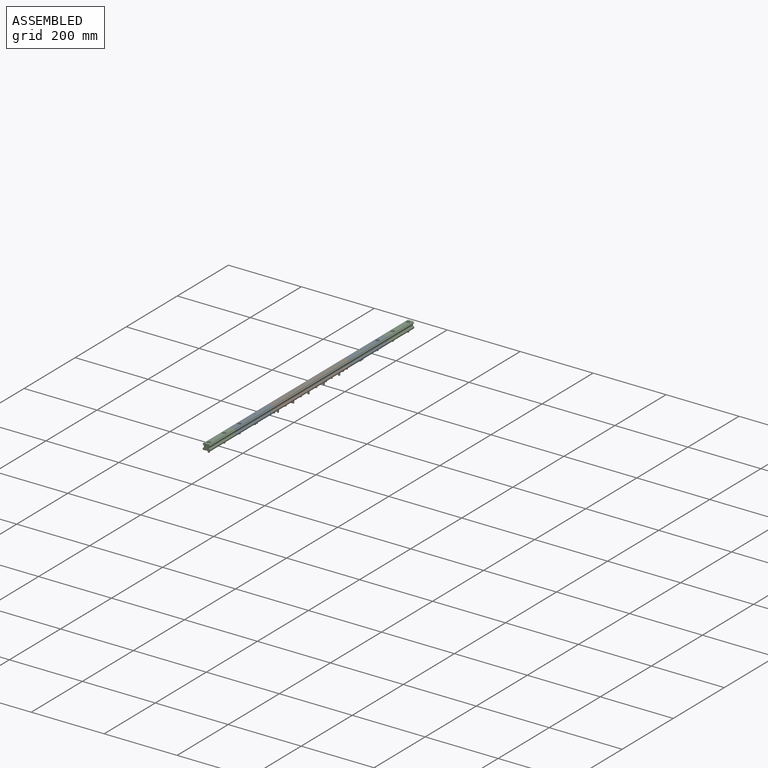
[diagram: assembled view]
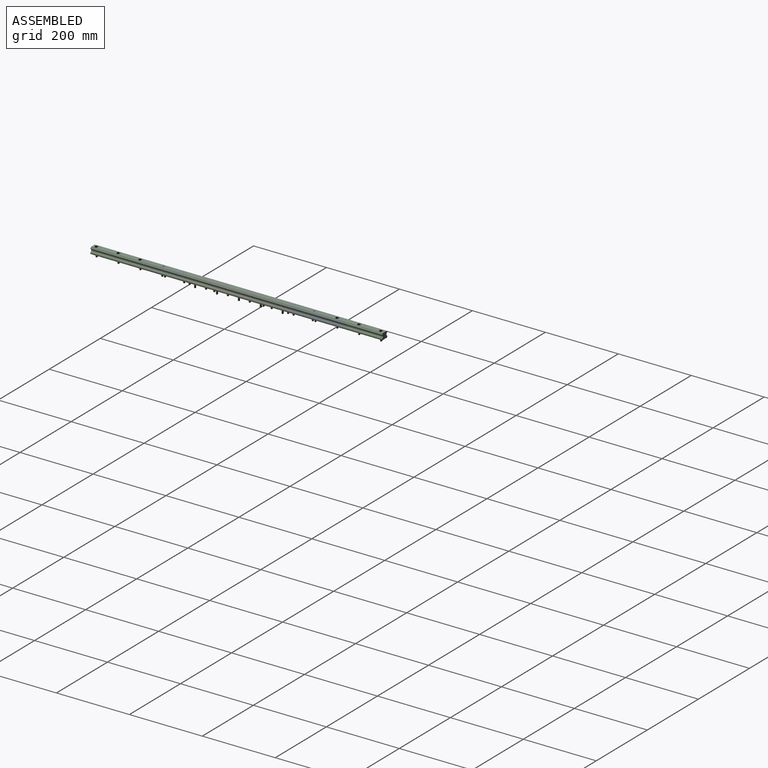
[diagram: assembled view, second angle]
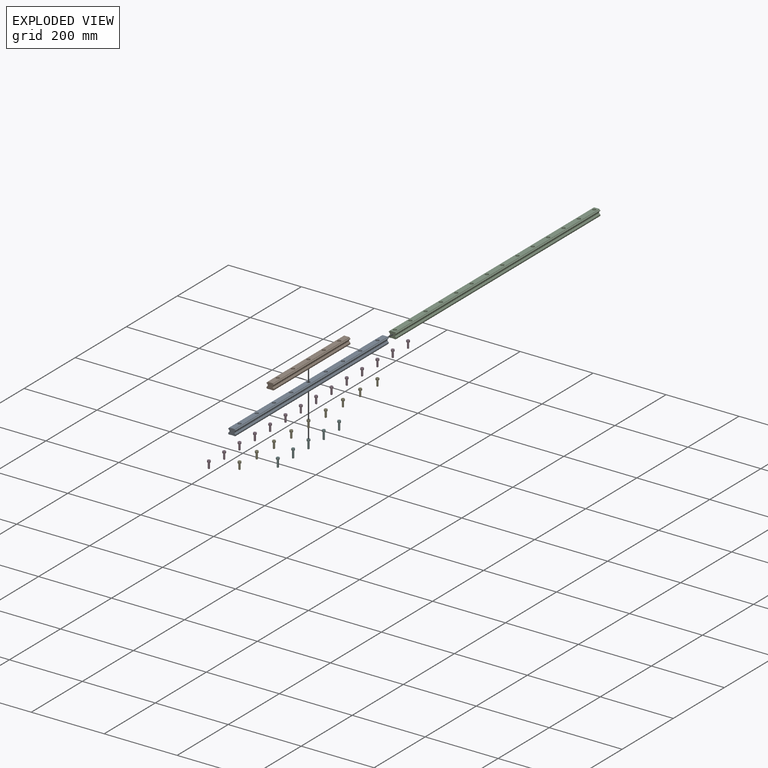
[diagram: exploded view]
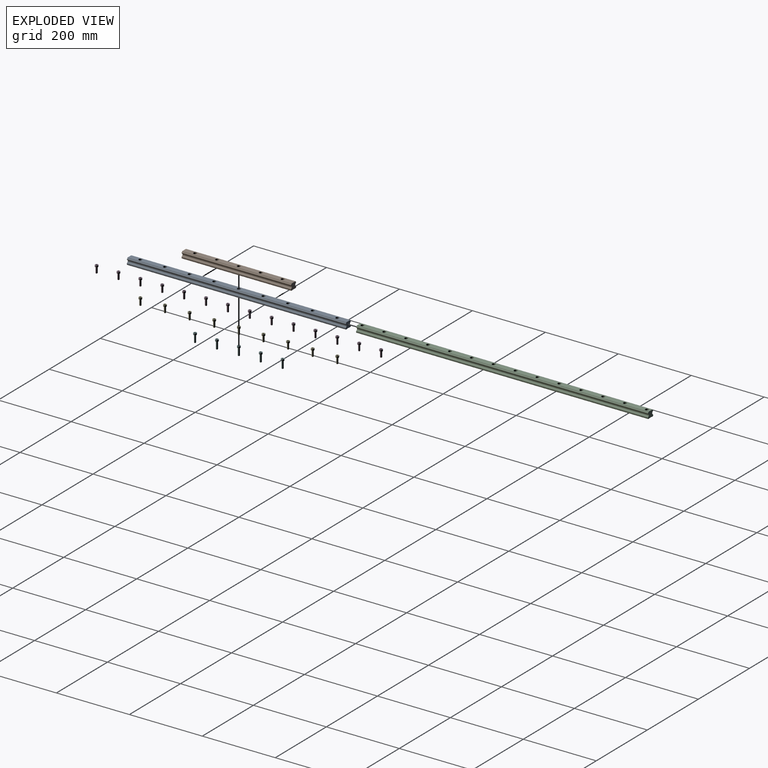
[diagram: exploded view, second angle]
FCSTD DOCUMENT  (FreeCAD 2021.614R24301 +3747 (Git))
Label: HGR20
License: Creative Commons Attribution
LicenseURL: http://creativecommons.org/licenses/by/4.0/
objects: App::FeaturePython×96, Part::FeaturePython×80, App::LinkElement×28, Sketcher::SketchObject×6, App::Link×6, PartDesign::SubShapeBinder×3, PartDesign::Pad×3, PartDesign::Body×3, PartDesign::Pocket×2, PartDesign::Hole×2, PartDesign::LinearPattern×2, App::DocumentObjectGroup×1
note: 116 computed .brp shape members not serialized (recipe doc carries the construction recipe); baked Part::Feature solids carry a one-line shape summary decoded from their .brp

FEATURE [PartDesign::SubShapeBinder] Import  label="Import(Sketch002)"
  BindCopyOnChange = 0
  BindMode = 0
  ClaimChildren = false
  Context = -> Body [Pad.Import.]
  FillStyle = 0
  Fuse = false
  MakeFace = false
  PartialLoad = false
  Relative = true
  Support = -> [Sketch002]
  _Version = 8
FEATURE [PartDesign::Pad] Pad
  ClaimChildren = false
  Direction = (1,1,1)
  Fit = 0
  FitJoin = 0
  InnerFit = 0
  InnerFitJoin = 0
  InnerTaperAngle = 0
  InnerTaperAngleRev = 0
  Length = 300
  Length2 = 100
  Linearize = true
  Midplane = true
  NewSolid = false
  Profile = -> Import
  Refine = true
  Suppress = false
  Type = 0
FEATURE [Sketcher::SketchObject] Sketch
  ExternalGeometry = -> [Pad]
  FullyConstrained = true
  MapMode = 5
  Placement = pos=(0,-3.8e-15,17.5) rot=(0,0,1;0rad)
  Support = -> [Pad]
  sketch-geometry (11):
    g0: Circle CenterX=0 CenterY=-120 CenterZ=0 NormalX=0 NormalY=0 NormalZ=1 AngleXU=0 Radius=2.95
    g1: Circle CenterX=0 CenterY=-60 CenterZ=0 NormalX=0 NormalY=0 NormalZ=1 AngleXU=0 Radius=2.95
    g2: Circle CenterX=0 CenterY=7.1e-15 CenterZ=0 NormalX=0 NormalY=0 NormalZ=1 AngleXU=0 Radius=2.95
    g3: Circle CenterX=0 CenterY=60 CenterZ=0 NormalX=0 NormalY=0 NormalZ=1 AngleXU=0 Radius=2.95
    g4: LineSegment [constr] StartX=0 StartY=-120 StartZ=0 EndX=0 EndY=-60 EndZ=0
    g5: LineSegment [constr] StartX=0 StartY=-60 StartZ=0 EndX=0 EndY=7.1e-15 EndZ=0
    g6: LineSegment [constr] StartX=0 StartY=7.1e-15 StartZ=0 EndX=0 EndY=60 EndZ=0
    g7: LineSegment [constr] StartX=0 StartY=60 StartZ=0 EndX=0 EndY=120 EndZ=0
    g8: Circle CenterX=0 CenterY=120 CenterZ=0 NormalX=0 NormalY=0 NormalZ=1 AngleXU=0 Radius=2.95
    g9: LineSegment [constr] StartX=0 StartY=120 StartZ=0 EndX=0 EndY=150 EndZ=0
    g10: LineSegment [constr] StartX=0 StartY=-120 StartZ=0 EndX=0 EndY=-150 EndZ=0
  constraints (29):
    c: PointOnObject(g0,g-2)
    c: PointOnObject(g1,g-2)
    c: PointOnObject(g2,g-2)
    c: PointOnObject(g3,g-2)
    c: Coincident(g4,g0)
    c: Coincident(g4,g1)
    c: Coincident(g5,g1)
    c: Coincident(g5,g2)
    c: Coincident(g6,g2)
    c: Coincident(g6,g3)
    c: Equal(g6,g5)
    c: Equal(g5,g4)
    c: DistanceY(g4,g4) = 60
    c: Coincident(g7,g3)
    c: Vertical(g7)
    c: Equal(g7,g6)
    c: Coincident(g8,g7)
    c: Equal(g8,g3)
    c: Equal(g3,g2)
    c: Equal(g2,g1)
    c: Equal(g1,g0)
    c: Coincident(g9,g8)
    c: PointOnObject(g9,g-3)
    c: Vertical(g9)
    c: Coincident(g10,g0)
    c: PointOnObject(g10,g-4)
    c: Vertical(g10)
    c: Equal(g10,g9)
    c: Diameter(g8) = 5.9
FEATURE [PartDesign::Pocket] Pocket
  BaseFeature = -> Pad
  ClaimChildren = false
  Fit = 0
  FitJoin = 0
  InnerFit = 0
  InnerFitJoin = 0
  InnerTaperAngle = 0
  InnerTaperAngleRev = 0
  Length = 5
  Length2 = 100
  Linearize = true
  NewSolid = false
  Profile = -> Sketch
  Refine = true
  Suppress = false
  Type = 1
FEATURE [Sketcher::SketchObject] Sketch001
  ExternalGeometry = -> [Pocket]
  FullyConstrained = true
  MapMode = 5
  Placement = pos=(0,-3.8e-15,17.5) rot=(0,0,1;0rad)
  Support = -> [Pocket]
  sketch-geometry (5):
    g0: Circle CenterX=0 CenterY=120 CenterZ=0 NormalX=0 NormalY=0 NormalZ=1 AngleXU=0 Radius=4.7
    g1: Circle CenterX=0 CenterY=60 CenterZ=0 NormalX=0 NormalY=0 NormalZ=1 AngleXU=0 Radius=4.7
    g2: Circle CenterX=0 CenterY=0 CenterZ=0 NormalX=0 NormalY=0 NormalZ=1 AngleXU=0 Radius=4.7
    g3: Circle CenterX=0 CenterY=-60 CenterZ=0 NormalX=0 NormalY=0 NormalZ=1 AngleXU=0 Radius=4.7
    g4: Circle CenterX=0 CenterY=-120 CenterZ=0 NormalX=0 NormalY=0 NormalZ=1 AngleXU=0 Radius=4.7
  constraints (10):
    c: Coincident(g0,g-3)
    c: Coincident(g1,g-4)
    c: Coincident(g2,g-5)
    c: Coincident(g3,g-6)
    c: Coincident(g4,g-7)
    c: Equal(g4,g3)
    c: Equal(g3,g2)
    c: Equal(g2,g1)
    c: Equal(g1,g0)
    c: Diameter(g0) = 9.4
FEATURE [PartDesign::Pocket] Pocket001
  BaseFeature = -> Pocket
  ClaimChildren = false
  Fit = 0
  FitJoin = 0
  InnerFit = 0
  InnerFitJoin = 0
  InnerTaperAngle = 0
  InnerTaperAngleRev = 0
  Length = 9.5
  Length2 = 100
  Linearize = true
  NewSolid = false
  Profile = -> Sketch001
  Refine = true
  Suppress = false
  Type = 0
FEATURE [PartDesign::Body] Body  label="HGR20-300"
  AutoGroupSolids = false
  ExportMode = 0
  Group = -> [Import,Pad,Sketch,Pocket,Sketch001,Pocket001]
  Origin = -> Origin
  Tip = -> Pocket001
  _ExportChildren = -> [Pad,Pocket,Pocket001]
  _GroupVersion = 1
FEATURE [App::Link] Link001  label="Link001(HGR20-300)"
  AutoLinkLabel = true
  LinkedObject = -> Body
  SyncGroupVisibility = false
  _LinkVersion = 1
FEATURE [Sketcher::SketchObject] Sketch002
  FullyConstrained = true
  MapMode = 5
  Placement = pos=(0,0,0) rot=(1,0,0;1.5708rad)
  sketch-geometry (29):
    g0: LineSegment StartX=-9 StartY=0 StartZ=0 EndX=-10 EndY=1 EndZ=0
    g1: LineSegment StartX=-10 StartY=1 StartZ=0 EndX=-10 EndY=4 EndZ=0
    g2: LineSegment StartX=-10 StartY=4 StartZ=0 EndX=-6.6 EndY=7.45 EndZ=0
    g3: LineSegment StartX=-6.6 StartY=7.45 StartZ=0 EndX=-6.6 EndY=9.95 EndZ=0
    g4: LineSegment StartX=-6.6 StartY=9.95 StartZ=0 EndX=-7.65996 EndY=11.05 EndZ=0
    g5: ArcOfCircle CenterX=-9.8 CenterY=10.8 CenterZ=0 NormalX=0 NormalY=0 NormalZ=1 AngleXU=0 Radius=2.15459 StartAngle=0.116293 EndAngle=1.47784
    g6: LineSegment StartX=-9.6 StartY=12.9453 StartZ=0 EndX=-10 EndY=13.3453 EndZ=0
    g7: LineSegment StartX=-10 StartY=13.3453 StartZ=0 EndX=-10 EndY=14.6953 EndZ=0
    g8: LineSegment StartX=-10 StartY=14.6953 StartZ=0 EndX=-9.6 EndY=15.0953 EndZ=0
    g9: ArcOfCircle CenterX=-9.8 CenterY=17.2406 CenterZ=0 NormalX=0 NormalY=0 NormalZ=1 AngleXU=0 Radius=2.15459 StartAngle=4.80535 EndAngle=6.21789
    g10: LineSegment StartX=-7.65 StartY=17.1 StartZ=0 EndX=-7.25 EndY=17.5 EndZ=0
    g11: LineSegment StartX=-7.25 StartY=17.5 StartZ=0 EndX=0 EndY=17.5 EndZ=0
    g12: LineSegment StartX=0 StartY=17.5 StartZ=0 EndX=7.25 EndY=17.5 EndZ=0
    g13: LineSegment StartX=7.25 StartY=17.5 StartZ=0 EndX=7.65 EndY=17.1 EndZ=0
    g14: ArcOfCircle CenterX=9.8 CenterY=17.2406 CenterZ=0 NormalX=0 NormalY=0 NormalZ=1 AngleXU=0 Radius=2.15459 StartAngle=3.20688 EndAngle=4.61943
    g15: LineSegment StartX=9.6 StartY=15.0953 StartZ=0 EndX=10 EndY=14.6953 EndZ=0
    g16: LineSegment StartX=10 StartY=14.6953 StartZ=0 EndX=10 EndY=13.3453 EndZ=0
    g17: LineSegment StartX=10 StartY=13.3453 StartZ=0 EndX=9.6 EndY=12.9453 EndZ=0
    g18: ArcOfCircle CenterX=9.8 CenterY=10.8 CenterZ=0 NormalX=0 NormalY=0 NormalZ=1 AngleXU=0 Radius=2.15459 StartAngle=1.66376 EndAngle=3.0253
    g19: LineSegment StartX=7.65996 StartY=11.05 StartZ=0 EndX=6.6 EndY=9.95 EndZ=0
    g20: LineSegment StartX=6.6 StartY=9.95 StartZ=0 EndX=6.6 EndY=7.45 EndZ=0
    g21: LineSegment StartX=6.6 StartY=7.45 StartZ=0 EndX=10 EndY=4 EndZ=0
    g22: LineSegment StartX=10 StartY=4 StartZ=0 EndX=10 EndY=1 EndZ=0
    g23: LineSegment StartX=10 StartY=1 StartZ=0 EndX=9 EndY=0 EndZ=0
    g24: LineSegment StartX=-4 StartY=0 StartZ=0 EndX=-4 EndY=0.4 EndZ=0
    g25: LineSegment StartX=-4 StartY=0.4 StartZ=0 EndX=4 EndY=0.4 EndZ=0
    g26: LineSegment StartX=4 StartY=0.4 StartZ=0 EndX=4 EndY=0 EndZ=0
    g27: LineSegment StartX=-9 StartY=0 StartZ=0 EndX=-4 EndY=0 EndZ=0
    g28: LineSegment StartX=4 StartY=0 StartZ=0 EndX=9 EndY=0 EndZ=0
  constraints (89):
    c: Coincident(g0,g1)
    c: Vertical(g1)
    c: Coincident(g1,g2)
    c: Coincident(g2,g3)
    c: Vertical(g3)
    c: Coincident(g3,g4)
    c: Coincident(g5,g4)
    c: Coincident(g6,g5)
    c: Coincident(g6,g7)
    c: Vertical(g7)
    c: Coincident(g7,g8)
    c: Coincident(g9,g8)
    c: Coincident(g9,g10)
    c: Coincident(g10,g11)
    c: PointOnObject(g11,g-2)
    c: Horizontal(g11)
    c: Coincident(g11,g12)
    c: Horizontal(g12)
    c: Coincident(g12,g13)
    c: Coincident(g14,g13)
    c: Coincident(g14,g15)
    c: Coincident(g15,g16)
    c: Coincident(g16,g17)
    c: Coincident(g18,g17)
    c: Coincident(g18,g19)
    c: Coincident(g19,g20)
    c: Vertical(g20)
    c: Coincident(g20,g21)
    c: Coincident(g21,g22)
    c: Vertical(g22)
    c: Coincident(g22,g23)
    c: PointOnObject(g23,g-1)
    c: Equal(g0,g23)
    c: Equal(g22,g1)
    c: Equal(g2,g21)
    c: Equal(g20,g3)
    c: Equal(g4,g19)
    c: Equal(g5,g18)
    c: Equal(g18,g14)
    c: Equal(g14,g9)
    c: Equal(g15,g17)
    c: Vertical(g16)
    c: Equal(g16,g7)
    c: Equal(g10,g13)
    c: Equal(g12,g11)
    c: DistanceX(g10,g12) = 14.5
    c: Horizontal(g22,g0)
    c: DistanceX(g0,g22) = 20
    c: Horizontal(g2,g20)
    c: DistanceX(g0,g23) = 18
    c: DistanceY(g23,g22) = 1
    c: DistanceY(g22,g22) = 3
    c: DistanceX(g2,g20) = 13.2
    c: DistanceY(g21,g20) = 3.45
    c: DistanceY(g20,g20) = 2.5
    c: Horizontal(g18,g5)
    c: Horizontal(g18,g4)
    c: Horizontal(g9,g13)
    c: Horizontal(g9,g14)
    c: Vertical(g9,g5)
    c: DistanceX(g9,g13) = 15.3
    c: DistanceY(g13,g12) = 0.4
    c: Vertical(g15,g21)
    c: Vertical(g7,g1)
    c: Equal(g13,g15)
    c: Equal(g17,g6)
    c: Equal(g6,g8)
    c: DistanceY(g19,g18) = 1.1
    c: DistanceY(g23,g18) = 10.8
    c: DistanceX(g5,g17) = 19.2
    c: DistanceY(g23,g12) = 17.5
    c: DistanceY(g17,g16) = 0.4
    c: DistanceY(g15,g14) = 0.4
    c: DistanceY(g7,g7) = 1.35
    c: DistanceX(g-1,g18) = 9.8
    c: Coincident(g24,g25)
    c: Horizontal(g25)
    c: Coincident(g25,g26)
    c: Vertical(g26)
    c: Vertical(g24)
    c: Symmetric(g26,g24,g-1)
    c: Coincident(g27,g0)
    c: Coincident(g27,g24)
    c: Horizontal(g27)
    c: Coincident(g28,g26)
    c: Coincident(g28,g23)
    c: DistanceX(g25,g25) = 8
    c: DistanceY(g26,g26) = 0.4
    c: Symmetric(g23,g0,g-1)
FEATURE [PartDesign::SubShapeBinder] Import001  label="Import001(Sketch002)"
  BindCopyOnChange = 0
  BindMode = 0
  ClaimChildren = false
  Context = -> Body001 [Import001.]
  FillStyle = 0
  Fuse = false
  MakeFace = false
  PartialLoad = false
  Relative = true
  Support = -> [Sketch002]
  _Version = 8
FEATURE [PartDesign::Pad] Pad001
  ClaimChildren = false
  Direction = (1,1,1)
  Fit = 0
  FitJoin = 0
  InnerFit = 0
  InnerFitJoin = 0
  InnerTaperAngle = 0
  InnerTaperAngleRev = 0
  Length = 600
  Length2 = 100
  Linearize = true
  Midplane = true
  NewSolid = false
  Profile = -> Import001
  Refine = true
  Suppress = false
  Type = 0
FEATURE [Sketcher::SketchObject] Sketch003
  ExternalGeometry = -> [Pad001]
  FullyConstrained = true
  MapMode = 5
  Placement = pos=(0,0,17.5) rot=(0,0,1;0rad)
  Support = -> [Pad001]
  sketch-geometry (1):
    g0: Circle CenterX=0 CenterY=-270 CenterZ=0 NormalX=0 NormalY=0 NormalZ=1 AngleXU=0 Radius=2.95
  constraints (3):
    c: PointOnObject(g0,g-2)
    c: Diameter(g0) = 5.9
    c: DistanceY(g-3,g0) = 30
FEATURE [PartDesign::Hole] Hole
  BaseFeature = -> Pad001
  ClaimChildren = false
  CustomThreadClearance = 0
  Depth = 25
  DepthType = 1
  Diameter = 5.9
  DrillForDepth = false
  DrillPoint = 1
  DrillPointAngle = 118
  Fit = 0
  FitJoin = 0
  HoleCutCountersinkAngle = 90
  HoleCutCustomValues = false
  HoleCutDepth = 9.5
  HoleCutDiameter = 9.5
  HoleCutType = 1
  InnerFit = 0
  InnerFitJoin = 0
  ModelThread = false
  NewSolid = false
  Profile = -> Sketch003
  Refine = true
  Suppress = false
  Tapered = false
  TaperedAngle = 90
  ThreadClass = 0
  ThreadDepth = 1213.19
  ThreadDepthType = 0
  ThreadDirection = 0
  ThreadFit = 0
  ThreadSize = 0
  ThreadType = 0
  Threaded = false
  UseCustomThreadClearance = false
FEATURE [PartDesign::LinearPattern] LinearPattern
  BaseFeature = -> Hole
  CopyShape = false
  Direction = -> Y_Axis001
  Length = 540
  NewSolid = false
  Occurrences = 9
  OriginalSubs = -> [Hole]
  Originals = -> [Hole]
  ParallelTransform = true
  Refine = true
  SubTransform = true
  Suppress = false
  _Version = 1
FEATURE [PartDesign::Body] Body001  label="HGR20-600"
  AutoGroupSolids = false
  ExportMode = 0
  Group = -> [Import001,Pad001,Sketch003,Hole,LinearPattern]
  Origin = -> Origin001
  Tip = -> LinearPattern
  _ExportChildren = -> [Pad001,Hole,LinearPattern]
  _GroupVersion = 1
FEATURE [App::Link] Link  label="Link(HGR20-600)"
  AutoLinkLabel = true
  LinkedObject = -> Body001
  SyncGroupVisibility = false
  _LinkVersion = 1
FEATURE [PartDesign::SubShapeBinder] Import002  label="Import002(Sketch002)"
  BindCopyOnChange = 0
  BindMode = 0
  ClaimChildren = false
  Context = -> Body002 [Import002.]
  FillStyle = 0
  Fuse = false
  MakeFace = false
  PartialLoad = false
  Relative = true
  Support = -> [Sketch002]
  _Version = 8
FEATURE [PartDesign::Pad] Pad002
  ClaimChildren = false
  Direction = (1,1,1)
  Fit = 0
  FitJoin = 0
  InnerFit = 0
  InnerFitJoin = 0
  InnerTaperAngle = 0
  InnerTaperAngleRev = 0
  Length = 800
  Length2 = 100
  Linearize = true
  Midplane = true
  NewSolid = false
  Profile = -> Import002
  Refine = true
  Suppress = false
  Type = 0
FEATURE [Sketcher::SketchObject] Sketch004
  ExternalGeometry = -> [Pad002]
  FullyConstrained = true
  MapMode = 5
  Placement = pos=(0,-3.8e-15,17.5) rot=(0,0,1;0rad)
  Support = -> [Pad002]
  sketch-geometry (1):
    g0: Circle CenterX=0 CenterY=-390 CenterZ=0 NormalX=0 NormalY=0 NormalZ=1 AngleXU=0 Radius=2.95
  constraints (3):
    c: PointOnObject(g0,g-2)
    c: Diameter(g0) = 5.9
    c: DistanceY(g-3,g0) = 10
FEATURE [PartDesign::Hole] Hole001
  BaseFeature = -> Pad002
  ClaimChildren = false
  CustomThreadClearance = 0
  Depth = 25
  DepthType = 1
  Diameter = 5.9
  DrillForDepth = false
  DrillPoint = 1
  DrillPointAngle = 118
  Fit = 0
  FitJoin = 0
  HoleCutCountersinkAngle = 90
  HoleCutCustomValues = false
  HoleCutDepth = 9.5
  HoleCutDiameter = 9.5
  HoleCutType = 1
  InnerFit = 0
  InnerFitJoin = 0
  ModelThread = false
  NewSolid = false
  Profile = -> Sketch004
  Refine = true
  Suppress = false
  Tapered = false
  TaperedAngle = 90
  ThreadClass = 0
  ThreadDepth = 1616.89
  ThreadDepthType = 0
  ThreadDirection = 0
  ThreadFit = 0
  ThreadSize = 0
  ThreadType = 0
  Threaded = false
  UseCustomThreadClearance = false
FEATURE [PartDesign::LinearPattern] LinearPattern001
  BaseFeature = -> Hole001
  CopyShape = false
  Direction = -> Y_Axis002
  Length = 780
  NewSolid = false
  Occurrences = 14
  OriginalSubs = -> [Hole001]
  Originals = -> [Hole001]
  ParallelTransform = true
  Refine = true
  SubTransform = true
  Suppress = false
  _Version = 1
FEATURE [App::Link] Link002  label="Link002(GHR20-800)"
  AutoLinkLabel = true
  LinkedObject = -> Body002
  SyncGroupVisibility = false
  _LinkVersion = 1
FEATURE [Sketcher::SketchObject] Sketch005
  FullyConstrained = true
  MapMode = 5
  Support = -> [XY_Plane002]
  sketch-geometry (1):
    g0: Circle CenterX=0 CenterY=0 CenterZ=0 NormalX=0 NormalY=0 NormalZ=1 AngleXU=0 Radius=2.5
  constraints (2):
    c: Coincident(g0,g-1)
    c: Diameter(g0) = 5
FEATURE [PartDesign::Body] Body002  label="GHR20-800"
  AutoGroupSolids = false
  ExportMode = 0
  Group = -> [Import002,Pad002,Sketch004,Hole001,LinearPattern001,Sketch005]
  Origin = -> Origin002
  Tip = -> LinearPattern001
  _ExportChildren = -> [Pad002,Hole001,LinearPattern001,Sketch005]
  _GroupVersion = 1
FEATURE [Part::FeaturePython] Screw  label="M5x16-Screw"  # Fasteners workbench fastener (typed FeaturePython)
  diameter = 6
  invert = false
  length = 4
  lengthCustom = 16
  matchOuter = false
  offset = 0
  thread = false
  type = 33
FEATURE [Part::FeaturePython] Screw001  label="M5x20-Screw"  # Fasteners workbench fastener (typed FeaturePython)
  diameter = 6
  invert = false
  length = 5
  lengthCustom = 20
  matchOuter = false
  offset = 0
  thread = false
  type = 33
FEATURE [App::DocumentObjectGroup] Group  label="Components"
  ExportMode = 1
  Group = -> [Sketch002,Body,Body001,Body002,Screw,Screw001]
  _GroupVersion = 1
FEATURE [App::LinkElement] Link003_i0
  LinkPlacement = pos=(-150,-44,2.92237e-06) rot=(0.57735,-0.57735,-0.57735;4.18879rad)
  LinkedObject = -> Screw
  Placement = pos=(-150,-44,2.92237e-06) rot=(0.57735,-0.57735,-0.57735;4.18879rad)
  _LinkVersion = 0
FEATURE [App::LinkElement] Link003_i1
  LinkPlacement = pos=(-270,-44,1.00749e-05) rot=(0.57735,-0.57735,-0.57735;4.18879rad)
  LinkedObject = -> Screw
  Placement = pos=(-270,-44,1.00749e-05) rot=(0.57735,-0.57735,-0.57735;4.18879rad)
  _LinkVersion = 0
FEATURE [App::LinkElement] Link003_i2
  LinkPlacement = pos=(-330,-44,1.36512e-05) rot=(0.57735,-0.57735,-0.57735;4.18879rad)
  LinkedObject = -> Screw
  Placement = pos=(-330,-44,1.36512e-05) rot=(0.57735,-0.57735,-0.57735;4.18879rad)
  _LinkVersion = 0
FEATURE [App::LinkElement] Link003_i3
  LinkPlacement = pos=(-390,-44,1.72275e-05) rot=(0.57735,-0.57735,-0.57735;4.18879rad)
  LinkedObject = -> Screw
  Placement = pos=(-390,-44,1.72275e-05) rot=(0.57735,-0.57735,-0.57735;4.18879rad)
  _LinkVersion = 0
FEATURE [App::LinkElement] Link003_i4
  LinkPlacement = pos=(30,-44,-7.80647e-06) rot=(0.57735,-0.57735,-0.57735;4.18879rad)
  LinkedObject = -> Screw
  Placement = pos=(30,-44,-7.80647e-06) rot=(0.57735,-0.57735,-0.57735;4.18879rad)
  _LinkVersion = 0
FEATURE [App::LinkElement] Link003_i5
  LinkPlacement = pos=(90,-44,-1.13827e-05) rot=(0.57735,-0.57735,-0.57735;4.18879rad)
  LinkedObject = -> Screw
  Placement = pos=(90,-44,-1.13827e-05) rot=(0.57735,-0.57735,-0.57735;4.18879rad)
  _LinkVersion = 0
FEATURE [App::LinkElement] Link003_i6
  LinkPlacement = pos=(150,-44,-1.4959e-05) rot=(0.57735,-0.57735,-0.57735;4.18879rad)
  LinkedObject = -> Screw
  Placement = pos=(150,-44,-1.4959e-05) rot=(0.57735,-0.57735,-0.57735;4.18879rad)
  _LinkVersion = 0
FEATURE [App::LinkElement] Link003_i7
  LinkPlacement = pos=(210,-44,-1.85353e-05) rot=(0.57735,-0.57735,-0.57735;4.18879rad)
  LinkedObject = -> Screw
  Placement = pos=(210,-44,-1.85353e-05) rot=(0.57735,-0.57735,-0.57735;4.18879rad)
  _LinkVersion = 0
FEATURE [App::LinkElement] Link003_i8
  LinkPlacement = pos=(270,-44,-2.21116e-05) rot=(0.57735,-0.57735,-0.57735;4.18879rad)
  LinkedObject = -> Screw
  Placement = pos=(270,-44,-2.21116e-05) rot=(0.57735,-0.57735,-0.57735;4.18879rad)
  _LinkVersion = 0
FEATURE [App::LinkElement] Link003_i9
  LinkPlacement = pos=(330,-44,-2.56879e-05) rot=(0.57735,-0.57735,-0.57735;4.18879rad)
  LinkedObject = -> Screw
  Placement = pos=(330,-44,-2.56879e-05) rot=(0.57735,-0.57735,-0.57735;4.18879rad)
  _LinkVersion = 0
FEATURE [App::LinkElement] Link003_i10
  LinkPlacement = pos=(390,-44,-2.92641e-05) rot=(0.57735,-0.57735,-0.57735;4.18879rad)
  LinkedObject = -> Screw
  Placement = pos=(390,-44,-2.92641e-05) rot=(0.57735,-0.57735,-0.57735;4.18879rad)
  _LinkVersion = 0
FEATURE [App::LinkElement] Link003_i11
  LinkPlacement = pos=(-210,-44,6.49865e-06) rot=(0.57735,-0.57735,-0.57735;4.18879rad)
  LinkedObject = -> Screw
  Placement = pos=(-210,-44,6.49865e-06) rot=(0.57735,-0.57735,-0.57735;4.18879rad)
  _LinkVersion = 0
FEATURE [App::LinkElement] Link003_i12
  LinkPlacement = pos=(-90,-44,-6.53912e-07) rot=(0.57735,-0.57735,-0.57735;4.18879rad)
  LinkedObject = -> Screw
  Placement = pos=(-90,-44,-6.53912e-07) rot=(0.57735,-0.57735,-0.57735;4.18879rad)
  _LinkVersion = 0
FEATURE [App::LinkElement] Link003_i13
  LinkPlacement = pos=(-30,-44,-4.23019e-06) rot=(0.57735,-0.57735,-0.57735;4.18879rad)
  LinkedObject = -> Screw
  Placement = pos=(-30,-44,-4.23019e-06) rot=(0.57735,-0.57735,-0.57735;4.18879rad)
  _LinkVersion = 0
FEATURE [App::Link] Link003  label="M5x16-Screw 14ct"
  AutoLinkLabel = true
  ElementCount = 14
  ElementList = -> [Link003_i0,Link003_i1,Link003_i2,Link003_i3,Link003_i4,Link003_i5,Link003_i6,Link003_i7,Link003_i8,Link003_i9,Link003_i10,Link003_i11,Link003_i12,Link003_i13]
  LinkPlacement = pos=(-3.39573e-06,-6.19888e-06,52) rot=(-0.57735,0.57735,0.57735;4.18879rad)
  LinkedObject = -> Screw
  Placement = pos=(-3.39573e-06,-6.19888e-06,52) rot=(-0.57735,0.57735,0.57735;4.18879rad)
  SyncGroupVisibility = false
  _LinkVersion = 1
FEATURE [Part::FeaturePython] Parts002  # WARN: FeaturePython — macro-defined, semantics opaque (R4)
  Group = -> [Link002,Link003]
  GroupMode = 0
  _LinkVersion = 1
FEATURE [App::LinkElement] Link004_i0
  LinkPlacement = pos=(-270,-24.1482,-6.47045) rot=(-0.519988,0.519988,0.677662;1.95044rad)
  LinkedObject = -> Screw
  Placement = pos=(-270,-24.1482,-6.47045) rot=(-0.519988,0.519988,0.677662;1.95044rad)
  _LinkVersion = 0
FEATURE [App::LinkElement] Link004_i1
  LinkPlacement = pos=(-202.5,-24.1482,-6.47046) rot=(-0.519988,0.519988,0.677662;1.95044rad)
  LinkedObject = -> Screw
  Placement = pos=(-202.5,-24.1482,-6.47046) rot=(-0.519988,0.519988,0.677662;1.95044rad)
  _LinkVersion = 0
FEATURE [App::LinkElement] Link004_i2
  LinkPlacement = pos=(-135,-24.1482,-6.47046) rot=(-0.519988,0.519988,0.677662;1.95044rad)
  LinkedObject = -> Screw
  Placement = pos=(-135,-24.1482,-6.47046) rot=(-0.519988,0.519988,0.677662;1.95044rad)
  _LinkVersion = 0
FEATURE [App::LinkElement] Link004_i3
  LinkPlacement = pos=(-67.5,-24.1481,-6.47047) rot=(-0.519988,0.519988,0.677662;1.95044rad)
  LinkedObject = -> Screw
  Placement = pos=(-67.5,-24.1481,-6.47047) rot=(-0.519988,0.519988,0.677662;1.95044rad)
  _LinkVersion = 0
FEATURE [App::LinkElement] Link004_i4
  LinkPlacement = pos=(-3.88999e-07,-24.1481,-6.47048) rot=(-0.519988,0.519988,0.677662;1.95044rad)
  LinkedObject = -> Screw
  Placement = pos=(-3.88999e-07,-24.1481,-6.47048) rot=(-0.519988,0.519988,0.677662;1.95044rad)
  _LinkVersion = 0
FEATURE [App::LinkElement] Link004_i5
  LinkPlacement = pos=(67.5,-24.1481,-6.47049) rot=(-0.519988,0.519988,0.677662;1.95044rad)
  LinkedObject = -> Screw
  Placement = pos=(67.5,-24.1481,-6.47049) rot=(-0.519988,0.519988,0.677662;1.95044rad)
  _LinkVersion = 0
FEATURE [App::LinkElement] Link004_i6
  LinkPlacement = pos=(135,-24.1481,-6.4705) rot=(-0.519988,0.519988,0.677662;1.95044rad)
  LinkedObject = -> Screw
  Placement = pos=(135,-24.1481,-6.4705) rot=(-0.519988,0.519988,0.677662;1.95044rad)
  _LinkVersion = 0
FEATURE [App::LinkElement] Link004_i7
  LinkPlacement = pos=(202.5,-24.1481,-6.4705) rot=(-0.519988,0.519988,0.677662;1.95044rad)
  LinkedObject = -> Screw
  Placement = pos=(202.5,-24.1481,-6.4705) rot=(-0.519988,0.519988,0.677662;1.95044rad)
  _LinkVersion = 0
FEATURE [App::LinkElement] Link004_i8
  LinkPlacement = pos=(270,-24.1481,-6.47051) rot=(-0.519988,0.519988,0.677662;1.95044rad)
  LinkedObject = -> Screw
  Placement = pos=(270,-24.1481,-6.47051) rot=(-0.519988,0.519988,0.677662;1.95044rad)
  _LinkVersion = 0
FEATURE [App::Link] Link004  label="M5x16-Screw-9ct"
  AutoLinkLabel = true
  ElementCount = 9
  ElementList = -> [Link004_i0,Link004_i1,Link004_i2,Link004_i3,Link004_i4,Link004_i5,Link004_i6,Link004_i7,Link004_i8]
  LinkPlacement = pos=(-2.14576e-06,2.84e-14,33) rot=(0.519988,-0.519988,-0.677662;1.95044rad)
  LinkedObject = -> Screw
  Placement = pos=(-2.14576e-06,2.84e-14,33) rot=(0.519988,-0.519988,-0.677662;1.95044rad)
  SyncGroupVisibility = false
  _LinkVersion = 1
FEATURE [Part::FeaturePython] Parts001  # WARN: FeaturePython — macro-defined, semantics opaque (R4)
  Group = -> [Link,Link004]
  GroupMode = 0
  _LinkVersion = 1
FEATURE [App::LinkElement] Link005_i0
  LinkPlacement = pos=(120,35.5725,-19.612) rot=(0.447214,0.447214,-0.774597;1.82348rad)
  LinkedObject = -> Screw001
  Placement = pos=(120,35.5725,-19.612) rot=(0.447214,0.447214,-0.774597;1.82348rad)
  _LinkVersion = 0
FEATURE [App::LinkElement] Link005_i1
  LinkPlacement = pos=(60,35.5725,-19.612) rot=(0.447214,0.447214,-0.774597;1.82348rad)
  LinkedObject = -> Screw001
  Placement = pos=(60,35.5725,-19.612) rot=(0.447214,0.447214,-0.774597;1.82348rad)
  _LinkVersion = 0
FEATURE [App::LinkElement] Link005_i2
  LinkPlacement = pos=(-1.795e-06,35.5726,-19.612) rot=(0.447214,0.447214,-0.774597;1.82348rad)
  LinkedObject = -> Screw001
  Placement = pos=(-1.795e-06,35.5726,-19.612) rot=(0.447214,0.447214,-0.774597;1.82348rad)
  _LinkVersion = 0
FEATURE [App::LinkElement] Link005_i3
  LinkPlacement = pos=(-60,35.5726,-19.612) rot=(0.447214,0.447214,-0.774597;1.82348rad)
  LinkedObject = -> Screw001
  Placement = pos=(-60,35.5726,-19.612) rot=(0.447214,0.447214,-0.774597;1.82348rad)
  _LinkVersion = 0
FEATURE [App::LinkElement] Link005_i4
  LinkPlacement = pos=(-120,35.5726,-19.612) rot=(0.447214,0.447214,-0.774597;1.82348rad)
  LinkedObject = -> Screw001
  Placement = pos=(-120,35.5726,-19.612) rot=(0.447214,0.447214,-0.774597;1.82348rad)
  _LinkVersion = 0
FEATURE [App::Link] Link005  label="M5x20-Screw 5ct"
  AutoLinkLabel = true
  ElementCount = 5
  ElementList = -> [Link005_i0,Link005_i1,Link005_i2,Link005_i3,Link005_i4]
  LinkPlacement = pos=(0.801805,3.56523e-06,48.6127) rot=(-0.447214,-0.447214,0.774597;1.82348rad)
  LinkedObject = -> Screw001
  Placement = pos=(0.801805,3.56523e-06,48.6127) rot=(-0.447214,-0.447214,0.774597;1.82348rad)
  SyncGroupVisibility = false
  _LinkVersion = 1
FEATURE [Part::FeaturePython] Parts  # WARN: FeaturePython — macro-defined, semantics opaque (R4)
  Group = -> [Link001,Link005]
  GroupMode = 0
  _LinkVersion = 1
FEATURE [Part::FeaturePython] Assembly  label="HGR20-300-Assembly"  # WARN: FeaturePython — macro-defined, semantics opaque (R4)
  AutoRelax = true
  BuildShape = 0
  Freeze = false
  Group = -> [Constraints,Elements,Parts]
  Verbose = false
  _LinkVersion = 1
  _SolverType = 1
  _Version = 1
FEATURE [App::FeaturePython] Constraints  # WARN: FeaturePython — macro-defined, semantics opaque (R4)
  Group = -> [Constraint025,Constraint026,Constraint027,Constraint028,Constraint029,Constraint030]
  _LinkVersion = 1
  _Version = 1
FEATURE [App::FeaturePython] Elements  # WARN: FeaturePython — macro-defined, semantics opaque (R4)
  Group = -> [Element,Element001,Element002,Element003,Element004,Element005,Element006,Element007,Element008,Element009,Element010,_Element045,_Element046,_Element047,_Element048,_Element049]
  _LinkVersion = 1
FEATURE [Part::FeaturePython] Element  label="BP-mate-l"  # link proxy (typed FeaturePython)
  Detach = false
  LinkTransform = true
  LinkedObject = -> Link001 [Pocket001.Edge67]
  Offset = pos=(0,0,-0.4) rot=(0,0,1;0rad)
  Placement = pos=(0,-1.42e-14,-0.4) rot=(0,0,1;0rad)
  _LinkVersion = 1
  _Parent = -> Elements
FEATURE [Part::FeaturePython] Element001  label="BP-mate-r"  # link proxy (typed FeaturePython)
  Detach = false
  LinkTransform = true
  LinkedObject = -> Link001 [Pocket001.Edge63]
  Offset = pos=(0,0,-0.4) rot=(0,0,1;0rad)
  Placement = pos=(0,-1.42e-14,-0.4) rot=(0,0,1;0rad)
  _LinkVersion = 1
  _Parent = -> Elements
FEATURE [Part::FeaturePython] Element002  label="r-mate"  # link proxy (typed FeaturePython)
  Detach = false
  LinkTransform = true
  LinkedObject = -> Link001 [Pocket001.Face21]
  _LinkVersion = 1
  _Parent = -> Elements
FEATURE [Part::FeaturePython] Element003  label="l-mate"  # link proxy (typed FeaturePython)
  Detach = false
  LinkTransform = true
  LinkedObject = -> Link001 [Pocket001.Face13]
  _LinkVersion = 1
  _Parent = -> Elements
FEATURE [Part::FeaturePython] Element004  label="top-mate"  # link proxy (typed FeaturePython)
  Detach = false
  LinkTransform = true
  LinkedObject = -> Link001 [Pocket001.Face17]
  _LinkVersion = 1
  _Parent = -> Elements
FEATURE [Part::FeaturePython] Element005  # link proxy (typed FeaturePython)
  Detach = false
  LinkTransform = true
  LinkedObject = -> Link001 [Pocket001.Edge95]
  _LinkVersion = 1
  _Parent = -> Elements
FEATURE [Part::FeaturePython] Element006  # link proxy (typed FeaturePython)
  Detach = false
  LinkTransform = true
  LinkedObject = -> Link001 [Pocket001.Edge97]
  _LinkVersion = 1
  _Parent = -> Elements
FEATURE [Part::FeaturePython] Element007  # link proxy (typed FeaturePython)
  Detach = false
  LinkTransform = true
  LinkedObject = -> Link001 [Pocket001.Edge99]
  _LinkVersion = 1
  _Parent = -> Elements
FEATURE [Part::FeaturePython] Element008  # link proxy (typed FeaturePython)
  Detach = false
  LinkTransform = true
  LinkedObject = -> Link001 [Pocket001.Edge101]
  _LinkVersion = 1
  _Parent = -> Elements
FEATURE [Part::FeaturePython] Element009  # link proxy (typed FeaturePython)
  Detach = false
  LinkTransform = true
  LinkedObject = -> Link001 [Pocket001.Edge103]
  _LinkVersion = 1
  _Parent = -> Elements
FEATURE [Part::FeaturePython] Element010  label="point"  # link proxy (typed FeaturePython)
  Detach = false
  LinkTransform = true
  LinkedObject = -> Link001 [Pocket001.Vertex22]
  _LinkVersion = 1
  _Parent = -> Elements
FEATURE [Part::FeaturePython] Assembly001  label="HGR20-600-Assembly"  # WARN: FeaturePython — macro-defined, semantics opaque (R4)
  AutoRelax = true
  BuildShape = 0
  Freeze = false
  Group = -> [Constraints001,Elements001,Parts001]
  Verbose = false
  _LinkVersion = 1
  _SolverType = 1
  _Version = 1
FEATURE [App::FeaturePython] Constraints001  # WARN: FeaturePython — macro-defined, semantics opaque (R4)
  Group = -> [Constraint,Constraint016,Constraint017,Constraint018,Constraint019,Constraint020,Constraint021,Constraint022,Constraint023,Constraint024]
  _LinkVersion = 1
  _Version = 1
FEATURE [App::FeaturePython] Elements001  # WARN: FeaturePython — macro-defined, semantics opaque (R4)
  Group = -> [Element011,Element012,Element013,Element014,Element015,Element021,_Element028,_Element029,_Element030,_Element031,_Element032,_Element033,_Element034,_Element035,_Element036,_Element037,_Element038,_Element039,_Element040,_Element041,_Element042,_Element043,_Element044]
  _LinkVersion = 1
FEATURE [Part::FeaturePython] Element011  label="center-mate"  # link proxy (typed FeaturePython)
  Detach = false
  LinkTransform = true
  LinkedObject = -> Link [LinearPattern.Edge67]
  Offset = pos=(0,0,0.4) rot=(0,0,1;0rad)
  Placement = pos=(0,0,-0.4) rot=(0,0,1;0rad)
  _LinkVersion = 1
  _Parent = -> Elements001
FEATURE [App::FeaturePython] Constraint  label="Locked"  # WARN: FeaturePython — macro-defined, semantics opaque (R4)
  Disabled = false
  Group = -> [ElementLink]
  _ConstraintType = 0
  _LinkVersion = 1
  _Parent = -> Constraints001
FEATURE [App::FeaturePython] ElementLink  label="center-mate"  # link proxy (typed FeaturePython)
  LinkTransform = true
  LinkedObject = -> Element011
  _LinkVersion = 1
  _Parent = -> Constraint
FEATURE [Part::FeaturePython] Element012  label="top-mate"  # link proxy (typed FeaturePython)
  Detach = false
  LinkTransform = true
  LinkedObject = -> Link [LinearPattern.Face17]
  _LinkVersion = 1
  _Parent = -> Elements001
FEATURE [Part::FeaturePython] Element013  label="side-mate"  # link proxy (typed FeaturePython)
  Detach = false
  LinkTransform = true
  LinkedObject = -> Link [LinearPattern.Face13]
  _LinkVersion = 1
  _Parent = -> Elements001
FEATURE [Part::FeaturePython] Element014  label="left-point"  # link proxy (typed FeaturePython)
  Detach = false
  LinkTransform = true
  LinkedObject = -> Link [LinearPattern.Vertex15]
  _LinkVersion = 1
  _Parent = -> Elements001
FEATURE [Part::FeaturePython] Element015  label="right-point"  # link proxy (typed FeaturePython)
  Detach = false
  LinkTransform = true
  LinkedObject = -> Link [LinearPattern.Vertex39]
  _LinkVersion = 1
  _Parent = -> Elements001
FEATURE [Part::FeaturePython] Assembly002  label="HGR20-800 Assembly"  # WARN: FeaturePython — macro-defined, semantics opaque (R4)
  AutoRelax = true
  BuildShape = 0
  Freeze = false
  Group = -> [Constraints002,Elements002,Parts002]
  Verbose = false
  _LinkVersion = 1
  _SolverType = 1
  _Version = 1
FEATURE [App::FeaturePython] Constraints002  # WARN: FeaturePython — macro-defined, semantics opaque (R4)
  Group = -> [Constraint001,Constraint002,Constraint003,Constraint004,Constraint005,Constraint006,Constraint007,Constraint008,Constraint009,Constraint010,Constraint011,Constraint012,Constraint013,Constraint014,Constraint015]
  _LinkVersion = 1
  _Version = 1
FEATURE [App::FeaturePython] Elements002  # WARN: FeaturePython — macro-defined, semantics opaque (R4)
  Group = -> [Element016,Element017,Element018,Element019,Element020,_Element,_Element001,_Element002,_Element003,_Element004,_Element005,_Element006,_Element007,_Element008,_Element009,_Element010,_Element011,_Element012,_Element013,_Element014,_Element015,_Element016,_Element017,_Element018,_Element019,_Element020,_Element021,_Element022,_Element023,_Element024,_Element025,_Element026,_Element027]
  _LinkVersion = 1
FEATURE [Part::FeaturePython] Element016  label="center-mate"  # link proxy (typed FeaturePython)
  Detach = false
  LinkTransform = true
  LinkedObject = -> Link002 [Sketch005.Edge1]
  _LinkVersion = 1
  _Parent = -> Elements002
FEATURE [App::FeaturePython] Constraint001  label="Locked001"  # WARN: FeaturePython — macro-defined, semantics opaque (R4)
  Disabled = false
  Group = -> [ElementLink001]
  _ConstraintType = 0
  _LinkVersion = 1
  _Parent = -> Constraints002
FEATURE [App::FeaturePython] ElementLink001  label="center-mate"  # link proxy (typed FeaturePython)
  LinkTransform = true
  LinkedObject = -> Element016
  _LinkVersion = 1
  _Parent = -> Constraint001
FEATURE [Part::FeaturePython] Element017  label="top-mate"  # link proxy (typed FeaturePython)
  Detach = false
  LinkTransform = true
  LinkedObject = -> Link002 [LinearPattern001.Face17]
  _LinkVersion = 1
  _Parent = -> Elements002
FEATURE [Part::FeaturePython] Element018  label="side1"  # link proxy (typed FeaturePython)
  Detach = false
  LinkTransform = true
  LinkedObject = -> Link002 [LinearPattern001.Face13]
  _LinkVersion = 1
  _Parent = -> Elements002
FEATURE [Part::FeaturePython] Element019  label="side2"  # link proxy (typed FeaturePython)
  Detach = false
  LinkTransform = true
  LinkedObject = -> Link002 [LinearPattern001.Face21]
  _LinkVersion = 1
  _Parent = -> Elements002
FEATURE [Part::FeaturePython] Element020  label="point"  # link proxy (typed FeaturePython)
  Detach = false
  LinkTransform = true
  LinkedObject = -> Link002 [LinearPattern001.Vertex22]
  _LinkVersion = 1
  _Parent = -> Elements002
FEATURE [Part::FeaturePython] Element021  # link proxy (typed FeaturePython)
  Detach = false
  LinkTransform = true
  LinkedObject = -> Link [LinearPattern.Edge119]
  _LinkVersion = 1
  _Parent = -> Elements001
FEATURE [App::FeaturePython] Constraint002  label="Attachment"  # WARN: FeaturePython — macro-defined, semantics opaque (R4)
  Cascade = false
  Disabled = false
  Group = -> [ElementLink002,ElementLink003]
  Multiply = false
  _ConstraintType = 45
  _LinkVersion = 0
  _Parent = -> Constraints002
FEATURE [App::FeaturePython] ElementLink002  label="_Element"  # link proxy (typed FeaturePython)
  LinkTransform = true
  LinkedObject = -> _Element
  _LinkVersion = 0
  _Parent = -> Constraint002
FEATURE [Part::FeaturePython] _Element  # link proxy (typed FeaturePython)
  Detach = false
  LinkTransform = true
  LinkedObject = -> Link002 [LinearPattern001.Edge139]
  _LinkVersion = 0
  _Parent = -> Elements002
FEATURE [App::FeaturePython] ElementLink003  label="_Element001"  # link proxy (typed FeaturePython)
  LinkTransform = true
  LinkedObject = -> _Element001
  _LinkVersion = 0
  _Parent = -> Constraint002
FEATURE [Part::FeaturePython] _Element001  # link proxy (typed FeaturePython)
  Detach = false
  LinkTransform = true
  LinkedObject = -> Link003 [10.Edge9]
  _LinkVersion = 0
  _Parent = -> Elements002
FEATURE [App::FeaturePython] Constraint003  label="Attachment001"  # WARN: FeaturePython — macro-defined, semantics opaque (R4)
  Cascade = false
  Disabled = false
  Group = -> [ElementLink004,ElementLink005]
  Multiply = false
  _ConstraintType = 45
  _LinkVersion = 0
  _Parent = -> Constraints002
FEATURE [App::FeaturePython] ElementLink004  label="_Element002"  # link proxy (typed FeaturePython)
  LinkTransform = true
  LinkedObject = -> _Element002
  _LinkVersion = 0
  _Parent = -> Constraint003
FEATURE [Part::FeaturePython] _Element002  # link proxy (typed FeaturePython)
  Detach = false
  LinkTransform = true
  LinkedObject = -> Link003 [9.Edge9]
  _LinkVersion = 0
  _Parent = -> Elements002
FEATURE [App::FeaturePython] ElementLink005  label="_Element003"  # link proxy (typed FeaturePython)
  LinkTransform = true
  LinkedObject = -> _Element003
  _LinkVersion = 0
  _Parent = -> Constraint003
FEATURE [Part::FeaturePython] _Element003  # link proxy (typed FeaturePython)
  Detach = false
  LinkTransform = true
  LinkedObject = -> Link002 [LinearPattern001.Edge138]
  _LinkVersion = 0
  _Parent = -> Elements002
FEATURE [App::FeaturePython] Constraint004  label="Attachment002"  # WARN: FeaturePython — macro-defined, semantics opaque (R4)
  Cascade = false
  Disabled = false
  Group = -> [ElementLink006,ElementLink007]
  Multiply = false
  _ConstraintType = 45
  _LinkVersion = 0
  _Parent = -> Constraints002
FEATURE [App::FeaturePython] ElementLink006  label="_Element004"  # link proxy (typed FeaturePython)
  LinkTransform = true
  LinkedObject = -> _Element004
  _LinkVersion = 0
  _Parent = -> Constraint004
FEATURE [Part::FeaturePython] _Element004  # link proxy (typed FeaturePython)
  Detach = false
  LinkTransform = true
  LinkedObject = -> Link002 [LinearPattern001.Edge136]
  _LinkVersion = 0
  _Parent = -> Elements002
FEATURE [App::FeaturePython] ElementLink007  label="_Element005"  # link proxy (typed FeaturePython)
  LinkTransform = true
  LinkedObject = -> _Element005
  _LinkVersion = 0
  _Parent = -> Constraint004
FEATURE [Part::FeaturePython] _Element005  # link proxy (typed FeaturePython)
  Detach = false
  LinkTransform = true
  LinkedObject = -> Link003 [8.Edge9]
  _LinkVersion = 0
  _Parent = -> Elements002
FEATURE [App::FeaturePython] Constraint005  label="Attachment003"  # WARN: FeaturePython — macro-defined, semantics opaque (R4)
  Cascade = false
  Disabled = false
  Group = -> [ElementLink008,ElementLink009]
  Multiply = false
  _ConstraintType = 45
  _LinkVersion = 0
  _Parent = -> Constraints002
FEATURE [App::FeaturePython] ElementLink008  label="_Element006"  # link proxy (typed FeaturePython)
  LinkTransform = true
  LinkedObject = -> _Element006
  _LinkVersion = 0
  _Parent = -> Constraint005
FEATURE [Part::FeaturePython] _Element006  # link proxy (typed FeaturePython)
  Detach = false
  LinkTransform = true
  LinkedObject = -> Link003 [7.Edge9]
  _LinkVersion = 0
  _Parent = -> Elements002
FEATURE [App::FeaturePython] ElementLink009  label="_Element007"  # link proxy (typed FeaturePython)
  LinkTransform = true
  LinkedObject = -> _Element007
  _LinkVersion = 0
  _Parent = -> Constraint005
FEATURE [Part::FeaturePython] _Element007  # link proxy (typed FeaturePython)
  Detach = false
  LinkTransform = true
  LinkedObject = -> Link002 [LinearPattern001.Edge134]
  _LinkVersion = 0
  _Parent = -> Elements002
FEATURE [App::FeaturePython] Constraint006  label="Attachment004"  # WARN: FeaturePython — macro-defined, semantics opaque (R4)
  Cascade = false
  Disabled = false
  Group = -> [ElementLink010,ElementLink011]
  Multiply = false
  _ConstraintType = 45
  _LinkVersion = 0
  _Parent = -> Constraints002
FEATURE [App::FeaturePython] ElementLink010  label="_Element008"  # link proxy (typed FeaturePython)
  LinkTransform = true
  LinkedObject = -> _Element008
  _LinkVersion = 0
  _Parent = -> Constraint006
FEATURE [Part::FeaturePython] _Element008  # link proxy (typed FeaturePython)
  Detach = false
  LinkTransform = true
  LinkedObject = -> Link002 [LinearPattern001.Edge132]
  _LinkVersion = 0
  _Parent = -> Elements002
FEATURE [App::FeaturePython] ElementLink011  label="_Element009"  # link proxy (typed FeaturePython)
  LinkTransform = true
  LinkedObject = -> _Element009
  _LinkVersion = 0
  _Parent = -> Constraint006
FEATURE [Part::FeaturePython] _Element009  # link proxy (typed FeaturePython)
  Detach = false
  LinkTransform = true
  LinkedObject = -> Link003 [6.Edge9]
  _LinkVersion = 0
  _Parent = -> Elements002
FEATURE [App::FeaturePython] Constraint007  label="Attachment005"  # WARN: FeaturePython — macro-defined, semantics opaque (R4)
  Cascade = false
  Disabled = false
  Group = -> [ElementLink012,ElementLink013]
  Multiply = false
  _ConstraintType = 45
  _LinkVersion = 0
  _Parent = -> Constraints002
FEATURE [App::FeaturePython] ElementLink012  label="_Element010"  # link proxy (typed FeaturePython)
  LinkTransform = true
  LinkedObject = -> _Element010
  _LinkVersion = 0
  _Parent = -> Constraint007
FEATURE [Part::FeaturePython] _Element010  # link proxy (typed FeaturePython)
  Detach = false
  LinkTransform = true
  LinkedObject = -> Link003 [5.Edge9]
  _LinkVersion = 0
  _Parent = -> Elements002
FEATURE [App::FeaturePython] ElementLink013  label="_Element011"  # link proxy (typed FeaturePython)
  LinkTransform = true
  LinkedObject = -> _Element011
  _LinkVersion = 0
  _Parent = -> Constraint007
FEATURE [Part::FeaturePython] _Element011  # link proxy (typed FeaturePython)
  Detach = false
  LinkTransform = true
  LinkedObject = -> Link002 [LinearPattern001.Edge130]
  _LinkVersion = 0
  _Parent = -> Elements002
FEATURE [App::FeaturePython] Constraint008  label="Attachment006"  # WARN: FeaturePython — macro-defined, semantics opaque (R4)
  Cascade = false
  Disabled = false
  Group = -> [ElementLink014,ElementLink015]
  Multiply = false
  _ConstraintType = 45
  _LinkVersion = 0
  _Parent = -> Constraints002
FEATURE [App::FeaturePython] ElementLink014  label="_Element012"  # link proxy (typed FeaturePython)
  LinkTransform = true
  LinkedObject = -> _Element012
  _LinkVersion = 0
  _Parent = -> Constraint008
FEATURE [Part::FeaturePython] _Element012  # link proxy (typed FeaturePython)
  Detach = false
  LinkTransform = true
  LinkedObject = -> Link003 [4.Edge9]
  _LinkVersion = 0
  _Parent = -> Elements002
FEATURE [App::FeaturePython] ElementLink015  label="_Element013"  # link proxy (typed FeaturePython)
  LinkTransform = true
  LinkedObject = -> _Element013
  _LinkVersion = 0
  _Parent = -> Constraint008
FEATURE [Part::FeaturePython] _Element013  # link proxy (typed FeaturePython)
  Detach = false
  LinkTransform = true
  LinkedObject = -> Link002 [LinearPattern001.Edge128]
  _LinkVersion = 0
  _Parent = -> Elements002
FEATURE [App::FeaturePython] Constraint009  label="Attachment007"  # WARN: FeaturePython — macro-defined, semantics opaque (R4)
  Cascade = false
  Disabled = false
  Group = -> [ElementLink016,ElementLink017]
  Multiply = false
  _ConstraintType = 45
  _LinkVersion = 0
  _Parent = -> Constraints002
FEATURE [App::FeaturePython] ElementLink016  label="_Element014"  # link proxy (typed FeaturePython)
  LinkTransform = true
  LinkedObject = -> _Element014
  _LinkVersion = 0
  _Parent = -> Constraint009
FEATURE [Part::FeaturePython] _Element014  # link proxy (typed FeaturePython)
  Detach = false
  LinkTransform = true
  LinkedObject = -> Link003 [13.Edge9]
  _LinkVersion = 0
  _Parent = -> Elements002
FEATURE [App::FeaturePython] ElementLink017  label="_Element015"  # link proxy (typed FeaturePython)
  LinkTransform = true
  LinkedObject = -> _Element015
  _LinkVersion = 0
  _Parent = -> Constraint009
FEATURE [Part::FeaturePython] _Element015  # link proxy (typed FeaturePython)
  Detach = false
  LinkTransform = true
  LinkedObject = -> Link002 [LinearPattern001.Edge126]
  _LinkVersion = 0
  _Parent = -> Elements002
FEATURE [App::FeaturePython] Constraint010  label="Attachment008"  # WARN: FeaturePython — macro-defined, semantics opaque (R4)
  Cascade = false
  Disabled = false
  Group = -> [ElementLink018,ElementLink019]
  Multiply = false
  _ConstraintType = 45
  _LinkVersion = 0
  _Parent = -> Constraints002
FEATURE [App::FeaturePython] ElementLink018  label="_Element016"  # link proxy (typed FeaturePython)
  LinkTransform = true
  LinkedObject = -> _Element016
  _LinkVersion = 0
  _Parent = -> Constraint010
FEATURE [Part::FeaturePython] _Element016  # link proxy (typed FeaturePython)
  Detach = false
  LinkTransform = true
  LinkedObject = -> Link003 [12.Edge9]
  _LinkVersion = 0
  _Parent = -> Elements002
FEATURE [App::FeaturePython] ElementLink019  label="_Element017"  # link proxy (typed FeaturePython)
  LinkTransform = true
  LinkedObject = -> _Element017
  _LinkVersion = 0
  _Parent = -> Constraint010
FEATURE [Part::FeaturePython] _Element017  # link proxy (typed FeaturePython)
  Detach = false
  LinkTransform = true
  LinkedObject = -> Link002 [LinearPattern001.Edge124]
  _LinkVersion = 0
  _Parent = -> Elements002
FEATURE [App::FeaturePython] Constraint011  label="Attachment009"  # WARN: FeaturePython — macro-defined, semantics opaque (R4)
  Cascade = false
  Disabled = false
  Group = -> [ElementLink020,ElementLink021]
  Multiply = false
  _ConstraintType = 45
  _LinkVersion = 0
  _Parent = -> Constraints002
FEATURE [App::FeaturePython] ElementLink020  label="_Element018"  # link proxy (typed FeaturePython)
  LinkTransform = true
  LinkedObject = -> _Element018
  _LinkVersion = 0
  _Parent = -> Constraint011
FEATURE [Part::FeaturePython] _Element018  # link proxy (typed FeaturePython)
  Detach = false
  LinkTransform = true
  LinkedObject = -> Link003 [0.Edge9]
  _LinkVersion = 0
  _Parent = -> Elements002
FEATURE [App::FeaturePython] ElementLink021  label="_Element019"  # link proxy (typed FeaturePython)
  LinkTransform = true
  LinkedObject = -> _Element019
  _LinkVersion = 0
  _Parent = -> Constraint011
FEATURE [Part::FeaturePython] _Element019  # link proxy (typed FeaturePython)
  Detach = false
  LinkTransform = true
  LinkedObject = -> Link002 [LinearPattern001.Edge122]
  _LinkVersion = 0
  _Parent = -> Elements002
FEATURE [App::FeaturePython] Constraint012  label="Attachment010"  # WARN: FeaturePython — macro-defined, semantics opaque (R4)
  Cascade = false
  Disabled = false
  Group = -> [ElementLink024,ElementLink025]
  Multiply = false
  _ConstraintType = 45
  _LinkVersion = 0
  _Parent = -> Constraints002
FEATURE [Part::FeaturePython] _Element020  # link proxy (typed FeaturePython)
  Detach = false
  LinkTransform = true
  LinkedObject = -> Link003 [11.Edge9]
  _LinkVersion = 0
  _Parent = -> Elements002
FEATURE [Part::FeaturePython] _Element021  # link proxy (typed FeaturePython)
  Detach = false
  LinkTransform = true
  LinkedObject = -> Link002 [LinearPattern001.Edge120]
  _LinkVersion = 0
  _Parent = -> Elements002
FEATURE [App::FeaturePython] ElementLink024  label="_Element022"  # link proxy (typed FeaturePython)
  LinkTransform = true
  LinkedObject = -> _Element022
  _LinkVersion = 0
  _Parent = -> Constraint012
FEATURE [Part::FeaturePython] _Element022  # link proxy (typed FeaturePython)
  Detach = false
  LinkTransform = true
  LinkedObject = -> Link003 [1.Edge9]
  _LinkVersion = 0
  _Parent = -> Elements002
FEATURE [App::FeaturePython] ElementLink025  label="_Element023"  # link proxy (typed FeaturePython)
  LinkTransform = true
  LinkedObject = -> _Element023
  _LinkVersion = 0
  _Parent = -> Constraint012
FEATURE [Part::FeaturePython] _Element023  # link proxy (typed FeaturePython)
  Detach = false
  LinkTransform = true
  LinkedObject = -> Link002 [LinearPattern001.Edge118]
  _LinkVersion = 0
  _Parent = -> Elements002
FEATURE [Part::FeaturePython] _Element024  # link proxy (typed FeaturePython)
  Detach = false
  LinkTransform = true
  LinkedObject = -> Link003 [2.Edge9]
  _LinkVersion = 0
  _Parent = -> Elements002
FEATURE [Part::FeaturePython] _Element025  # link proxy (typed FeaturePython)
  Detach = false
  LinkTransform = true
  LinkedObject = -> Link002 [LinearPattern001.Edge116]
  _LinkVersion = 0
  _Parent = -> Elements002
FEATURE [Part::FeaturePython] _Element026  # link proxy (typed FeaturePython)
  Detach = false
  LinkTransform = true
  LinkedObject = -> Link003 [3.Edge9]
  _LinkVersion = 0
  _Parent = -> Elements002
FEATURE [Part::FeaturePython] _Element027  # link proxy (typed FeaturePython)
  Detach = false
  LinkTransform = true
  LinkedObject = -> Link002 [LinearPattern001.Edge114]
  _LinkVersion = 0
  _Parent = -> Elements002
FEATURE [App::FeaturePython] Constraint013  label="Attachment011"  # WARN: FeaturePython — macro-defined, semantics opaque (R4)
  Cascade = false
  Disabled = false
  Group = -> [ElementLink026,ElementLink027]
  Multiply = false
  _ConstraintType = 45
  _LinkVersion = 0
  _Parent = -> Constraints002
FEATURE [App::FeaturePython] ElementLink026  label="_Element026"  # link proxy (typed FeaturePython)
  LinkTransform = true
  LinkedObject = -> _Element026
  _LinkVersion = 0
  _Parent = -> Constraint013
FEATURE [App::FeaturePython] ElementLink027  label="_Element027"  # link proxy (typed FeaturePython)
  LinkTransform = true
  LinkedObject = -> _Element027
  _LinkVersion = 0
  _Parent = -> Constraint013
FEATURE [App::FeaturePython] Constraint014  label="Attachment012"  # WARN: FeaturePython — macro-defined, semantics opaque (R4)
  Cascade = false
  Disabled = false
  Group = -> [ElementLink028,ElementLink029]
  Multiply = false
  _ConstraintType = 45
  _LinkVersion = 0
  _Parent = -> Constraints002
FEATURE [App::FeaturePython] ElementLink028  label="_Element025"  # link proxy (typed FeaturePython)
  LinkTransform = true
  LinkedObject = -> _Element025
  _LinkVersion = 0
  _Parent = -> Constraint014
FEATURE [App::FeaturePython] ElementLink029  label="_Element024"  # link proxy (typed FeaturePython)
  LinkTransform = true
  LinkedObject = -> _Element024
  _LinkVersion = 0
  _Parent = -> Constraint014
FEATURE [App::FeaturePython] Constraint015  label="Attachment013"  # WARN: FeaturePython — macro-defined, semantics opaque (R4)
  Cascade = false
  Disabled = false
  Group = -> [ElementLink030,ElementLink031]
  Multiply = false
  _ConstraintType = 45
  _LinkVersion = 0
  _Parent = -> Constraints002
FEATURE [App::FeaturePython] ElementLink030  label="_Element021"  # link proxy (typed FeaturePython)
  LinkTransform = true
  LinkedObject = -> _Element021
  _LinkVersion = 0
  _Parent = -> Constraint015
FEATURE [App::FeaturePython] ElementLink031  label="_Element020"  # link proxy (typed FeaturePython)
  LinkTransform = true
  LinkedObject = -> _Element020
  _LinkVersion = 0
  _Parent = -> Constraint015
FEATURE [App::FeaturePython] Constraint016  label="Attachment014"  # WARN: FeaturePython — macro-defined, semantics opaque (R4)
  Cascade = false
  Disabled = false
  Group = -> [ElementLink032,ElementLink033]
  Multiply = false
  _ConstraintType = 45
  _LinkVersion = 0
  _Parent = -> Constraints001
FEATURE [App::FeaturePython] ElementLink032  label="_Element028"  # link proxy (typed FeaturePython)
  LinkTransform = true
  LinkedObject = -> _Element028
  _LinkVersion = 0
  _Parent = -> Constraint016
FEATURE [Part::FeaturePython] _Element028  # link proxy (typed FeaturePython)
  Detach = false
  LinkTransform = true
  LinkedObject = -> Link004 [8.Edge9]
  _LinkVersion = 0
  _Parent = -> Elements001
FEATURE [App::FeaturePython] ElementLink033  label="Element021"  # link proxy (typed FeaturePython)
  LinkTransform = true
  LinkedObject = -> Element021
  _LinkVersion = 0
  _Parent = -> Constraint016
FEATURE [App::FeaturePython] Constraint017  label="Attachment015"  # WARN: FeaturePython — macro-defined, semantics opaque (R4)
  Cascade = false
  Disabled = false
  Group = -> [ElementLink034,ElementLink035]
  Multiply = false
  _ConstraintType = 45
  _LinkVersion = 0
  _Parent = -> Constraints001
FEATURE [App::FeaturePython] ElementLink034  label="_Element029"  # link proxy (typed FeaturePython)
  LinkTransform = true
  LinkedObject = -> _Element029
  _LinkVersion = 0
  _Parent = -> Constraint017
FEATURE [Part::FeaturePython] _Element029  # link proxy (typed FeaturePython)
  Detach = false
  LinkTransform = true
  LinkedObject = -> Link004 [7.Edge9]
  _LinkVersion = 0
  _Parent = -> Elements001
FEATURE [App::FeaturePython] ElementLink035  label="_Element030"  # link proxy (typed FeaturePython)
  LinkTransform = true
  LinkedObject = -> _Element030
  _LinkVersion = 0
  _Parent = -> Constraint017
FEATURE [Part::FeaturePython] _Element030  # link proxy (typed FeaturePython)
  Detach = false
  LinkTransform = true
  LinkedObject = -> Link [LinearPattern.Edge118]
  _LinkVersion = 0
  _Parent = -> Elements001
FEATURE [App::FeaturePython] Constraint018  label="Attachment016"  # WARN: FeaturePython — macro-defined, semantics opaque (R4)
  Cascade = false
  Disabled = false
  Group = -> [ElementLink036,ElementLink037]
  Multiply = false
  _ConstraintType = 45
  _LinkVersion = 0
  _Parent = -> Constraints001
FEATURE [App::FeaturePython] ElementLink036  label="_Element031"  # link proxy (typed FeaturePython)
  LinkTransform = true
  LinkedObject = -> _Element031
  _LinkVersion = 0
  _Parent = -> Constraint018
FEATURE [Part::FeaturePython] _Element031  # link proxy (typed FeaturePython)
  Detach = false
  LinkTransform = true
  LinkedObject = -> Link004 [6.Edge9]
  _LinkVersion = 0
  _Parent = -> Elements001
FEATURE [App::FeaturePython] ElementLink037  label="_Element032"  # link proxy (typed FeaturePython)
  LinkTransform = true
  LinkedObject = -> _Element032
  _LinkVersion = 0
  _Parent = -> Constraint018
FEATURE [Part::FeaturePython] _Element032  # link proxy (typed FeaturePython)
  Detach = false
  LinkTransform = true
  LinkedObject = -> Link [LinearPattern.Edge116]
  _LinkVersion = 0
  _Parent = -> Elements001
FEATURE [App::FeaturePython] Constraint019  label="Attachment017"  # WARN: FeaturePython — macro-defined, semantics opaque (R4)
  Cascade = false
  Disabled = false
  Group = -> [ElementLink038,ElementLink039]
  Multiply = false
  _ConstraintType = 45
  _LinkVersion = 0
  _Parent = -> Constraints001
FEATURE [App::FeaturePython] ElementLink038  label="_Element033"  # link proxy (typed FeaturePython)
  LinkTransform = true
  LinkedObject = -> _Element033
  _LinkVersion = 0
  _Parent = -> Constraint019
FEATURE [Part::FeaturePython] _Element033  # link proxy (typed FeaturePython)
  Detach = false
  LinkTransform = true
  LinkedObject = -> Link004 [5.Edge9]
  _LinkVersion = 0
  _Parent = -> Elements001
FEATURE [App::FeaturePython] ElementLink039  label="_Element034"  # link proxy (typed FeaturePython)
  LinkTransform = true
  LinkedObject = -> _Element034
  _LinkVersion = 0
  _Parent = -> Constraint019
FEATURE [Part::FeaturePython] _Element034  # link proxy (typed FeaturePython)
  Detach = false
  LinkTransform = true
  LinkedObject = -> Link [LinearPattern.Edge114]
  _LinkVersion = 0
  _Parent = -> Elements001
FEATURE [App::FeaturePython] Constraint020  label="Attachment018"  # WARN: FeaturePython — macro-defined, semantics opaque (R4)
  Cascade = false
  Disabled = false
  Group = -> [ElementLink040,ElementLink041]
  Multiply = false
  _ConstraintType = 45
  _LinkVersion = 0
  _Parent = -> Constraints001
FEATURE [App::FeaturePython] ElementLink040  label="_Element035"  # link proxy (typed FeaturePython)
  LinkTransform = true
  LinkedObject = -> _Element035
  _LinkVersion = 0
  _Parent = -> Constraint020
FEATURE [Part::FeaturePython] _Element035  # link proxy (typed FeaturePython)
  Detach = false
  LinkTransform = true
  LinkedObject = -> Link004 [4.Edge9]
  _LinkVersion = 0
  _Parent = -> Elements001
FEATURE [App::FeaturePython] ElementLink041  label="_Element036"  # link proxy (typed FeaturePython)
  LinkTransform = true
  LinkedObject = -> _Element036
  _LinkVersion = 0
  _Parent = -> Constraint020
FEATURE [Part::FeaturePython] _Element036  # link proxy (typed FeaturePython)
  Detach = false
  LinkTransform = true
  LinkedObject = -> Link [LinearPattern.Edge112]
  _LinkVersion = 0
  _Parent = -> Elements001
FEATURE [App::FeaturePython] Constraint021  label="Attachment019"  # WARN: FeaturePython — macro-defined, semantics opaque (R4)
  Cascade = false
  Disabled = false
  Group = -> [ElementLink042,ElementLink043]
  Multiply = false
  _ConstraintType = 45
  _LinkVersion = 0
  _Parent = -> Constraints001
FEATURE [App::FeaturePython] ElementLink042  label="_Element037"  # link proxy (typed FeaturePython)
  LinkTransform = true
  LinkedObject = -> _Element037
  _LinkVersion = 0
  _Parent = -> Constraint021
FEATURE [Part::FeaturePython] _Element037  # link proxy (typed FeaturePython)
  Detach = false
  LinkTransform = true
  LinkedObject = -> Link004 [3.Edge9]
  _LinkVersion = 0
  _Parent = -> Elements001
FEATURE [App::FeaturePython] ElementLink043  label="_Element038"  # link proxy (typed FeaturePython)
  LinkTransform = true
  LinkedObject = -> _Element038
  _LinkVersion = 0
  _Parent = -> Constraint021
FEATURE [Part::FeaturePython] _Element038  # link proxy (typed FeaturePython)
  Detach = false
  LinkTransform = true
  LinkedObject = -> Link [LinearPattern.Edge110]
  _LinkVersion = 0
  _Parent = -> Elements001
FEATURE [App::FeaturePython] Constraint022  label="Attachment020"  # WARN: FeaturePython — macro-defined, semantics opaque (R4)
  Cascade = false
  Disabled = false
  Group = -> [ElementLink044,ElementLink045]
  Multiply = false
  _ConstraintType = 45
  _LinkVersion = 0
  _Parent = -> Constraints001
FEATURE [App::FeaturePython] ElementLink044  label="_Element039"  # link proxy (typed FeaturePython)
  LinkTransform = true
  LinkedObject = -> _Element039
  _LinkVersion = 0
  _Parent = -> Constraint022
FEATURE [Part::FeaturePython] _Element039  # link proxy (typed FeaturePython)
  Detach = false
  LinkTransform = true
  LinkedObject = -> Link004 [2.Edge9]
  _LinkVersion = 0
  _Parent = -> Elements001
FEATURE [App::FeaturePython] ElementLink045  label="_Element040"  # link proxy (typed FeaturePython)
  LinkTransform = true
  LinkedObject = -> _Element040
  _LinkVersion = 0
  _Parent = -> Constraint022
FEATURE [Part::FeaturePython] _Element040  # link proxy (typed FeaturePython)
  Detach = false
  LinkTransform = true
  LinkedObject = -> Link [LinearPattern.Edge108]
  _LinkVersion = 0
  _Parent = -> Elements001
FEATURE [App::FeaturePython] Constraint023  label="Attachment021"  # WARN: FeaturePython — macro-defined, semantics opaque (R4)
  Cascade = false
  Disabled = false
  Group = -> [ElementLink046,ElementLink047]
  Multiply = false
  _ConstraintType = 45
  _LinkVersion = 0
  _Parent = -> Constraints001
FEATURE [App::FeaturePython] ElementLink046  label="_Element041"  # link proxy (typed FeaturePython)
  LinkTransform = true
  LinkedObject = -> _Element041
  _LinkVersion = 0
  _Parent = -> Constraint023
FEATURE [Part::FeaturePython] _Element041  # link proxy (typed FeaturePython)
  Detach = false
  LinkTransform = true
  LinkedObject = -> Link004 [1.Edge9]
  _LinkVersion = 0
  _Parent = -> Elements001
FEATURE [App::FeaturePython] ElementLink047  label="_Element042"  # link proxy (typed FeaturePython)
  LinkTransform = true
  LinkedObject = -> _Element042
  _LinkVersion = 0
  _Parent = -> Constraint023
FEATURE [Part::FeaturePython] _Element042  # link proxy (typed FeaturePython)
  Detach = false
  LinkTransform = true
  LinkedObject = -> Link [LinearPattern.Edge106]
  _LinkVersion = 0
  _Parent = -> Elements001
FEATURE [App::FeaturePython] Constraint024  label="Attachment022"  # WARN: FeaturePython — macro-defined, semantics opaque (R4)
  Cascade = false
  Disabled = false
  Group = -> [ElementLink048,ElementLink049]
  Multiply = false
  _ConstraintType = 45
  _LinkVersion = 0
  _Parent = -> Constraints001
FEATURE [App::FeaturePython] ElementLink048  label="_Element043"  # link proxy (typed FeaturePython)
  LinkTransform = true
  LinkedObject = -> _Element043
  _LinkVersion = 0
  _Parent = -> Constraint024
FEATURE [Part::FeaturePython] _Element043  # link proxy (typed FeaturePython)
  Detach = false
  LinkTransform = true
  LinkedObject = -> Link004 [0.Edge9]
  _LinkVersion = 0
  _Parent = -> Elements001
FEATURE [App::FeaturePython] ElementLink049  label="_Element044"  # link proxy (typed FeaturePython)
  LinkTransform = true
  LinkedObject = -> _Element044
  _LinkVersion = 0
  _Parent = -> Constraint024
FEATURE [Part::FeaturePython] _Element044  # link proxy (typed FeaturePython)
  Detach = false
  LinkTransform = true
  LinkedObject = -> Link [LinearPattern.Edge104]
  _LinkVersion = 0
  _Parent = -> Elements001
FEATURE [App::FeaturePython] Constraint025  label="Locked002"  # WARN: FeaturePython — macro-defined, semantics opaque (R4)
  Disabled = false
  Group = -> [ElementLink050]
  _ConstraintType = 0
  _LinkVersion = 0
  _Parent = -> Constraints
FEATURE [App::FeaturePython] ElementLink050  label="top-mate"  # link proxy (typed FeaturePython)
  LinkTransform = true
  LinkedObject = -> Element004
  _LinkVersion = 0
  _Parent = -> Constraint025
FEATURE [App::FeaturePython] Constraint026  label="Attachment023"  # WARN: FeaturePython — macro-defined, semantics opaque (R4)
  Cascade = false
  Disabled = false
  Group = -> [ElementLink051,ElementLink052]
  Multiply = false
  _ConstraintType = 45
  _LinkVersion = 0
  _Parent = -> Constraints
FEATURE [App::FeaturePython] ElementLink051  label="_Element045"  # link proxy (typed FeaturePython)
  LinkTransform = true
  LinkedObject = -> _Element045
  _LinkVersion = 0
  _Parent = -> Constraint026
FEATURE [Part::FeaturePython] _Element045  # link proxy (typed FeaturePython)
  Detach = false
  LinkTransform = true
  LinkedObject = -> Link005 [0.Edge9]
  _LinkVersion = 0
  _Parent = -> Elements
FEATURE [App::FeaturePython] ElementLink052  label="Element005"  # link proxy (typed FeaturePython)
  LinkTransform = true
  LinkedObject = -> Element005
  _LinkVersion = 0
  _Parent = -> Constraint026
FEATURE [App::FeaturePython] Constraint027  label="Attachment024"  # WARN: FeaturePython — macro-defined, semantics opaque (R4)
  Cascade = false
  Disabled = false
  Group = -> [ElementLink053,ElementLink054]
  Multiply = false
  _ConstraintType = 45
  _LinkVersion = 0
  _Parent = -> Constraints
FEATURE [App::FeaturePython] ElementLink053  label="_Element046"  # link proxy (typed FeaturePython)
  LinkTransform = true
  LinkedObject = -> _Element046
  _LinkVersion = 0
  _Parent = -> Constraint027
FEATURE [Part::FeaturePython] _Element046  # link proxy (typed FeaturePython)
  Detach = false
  LinkTransform = true
  LinkedObject = -> Link005 [1.Edge9]
  _LinkVersion = 0
  _Parent = -> Elements
FEATURE [App::FeaturePython] ElementLink054  label="Element006"  # link proxy (typed FeaturePython)
  LinkTransform = true
  LinkedObject = -> Element006
  _LinkVersion = 0
  _Parent = -> Constraint027
FEATURE [App::FeaturePython] Constraint028  label="Attachment025"  # WARN: FeaturePython — macro-defined, semantics opaque (R4)
  Cascade = false
  Disabled = false
  Group = -> [ElementLink055,ElementLink056]
  Multiply = false
  _ConstraintType = 45
  _LinkVersion = 0
  _Parent = -> Constraints
FEATURE [App::FeaturePython] ElementLink055  label="_Element047"  # link proxy (typed FeaturePython)
  LinkTransform = true
  LinkedObject = -> _Element047
  _LinkVersion = 0
  _Parent = -> Constraint028
FEATURE [Part::FeaturePython] _Element047  # link proxy (typed FeaturePython)
  Detach = false
  LinkTransform = true
  LinkedObject = -> Link005 [2.Edge9]
  _LinkVersion = 0
  _Parent = -> Elements
FEATURE [App::FeaturePython] ElementLink056  label="Element007"  # link proxy (typed FeaturePython)
  LinkTransform = true
  LinkedObject = -> Element007
  _LinkVersion = 0
  _Parent = -> Constraint028
FEATURE [App::FeaturePython] Constraint029  label="Attachment026"  # WARN: FeaturePython — macro-defined, semantics opaque (R4)
  Cascade = false
  Disabled = false
  Group = -> [ElementLink057,ElementLink058]
  Multiply = false
  _ConstraintType = 45
  _LinkVersion = 0
  _Parent = -> Constraints
FEATURE [App::FeaturePython] ElementLink057  label="_Element048"  # link proxy (typed FeaturePython)
  LinkTransform = true
  LinkedObject = -> _Element048
  _LinkVersion = 0
  _Parent = -> Constraint029
FEATURE [Part::FeaturePython] _Element048  # link proxy (typed FeaturePython)
  Detach = false
  LinkTransform = true
  LinkedObject = -> Link005 [3.Edge9]
  _LinkVersion = 0
  _Parent = -> Elements
FEATURE [App::FeaturePython] ElementLink058  label="Element008"  # link proxy (typed FeaturePython)
  LinkTransform = true
  LinkedObject = -> Element008
  _LinkVersion = 0
  _Parent = -> Constraint029
FEATURE [App::FeaturePython] Constraint030  label="Attachment027"  # WARN: FeaturePython — macro-defined, semantics opaque (R4)
  Cascade = false
  Disabled = false
  Group = -> [ElementLink059,ElementLink060]
  Multiply = false
  _ConstraintType = 45
  _LinkVersion = 0
  _Parent = -> Constraints
FEATURE [App::FeaturePython] ElementLink059  label="_Element049"  # link proxy (typed FeaturePython)
  LinkTransform = true
  LinkedObject = -> _Element049
  _LinkVersion = 0
  _Parent = -> Constraint030
FEATURE [Part::FeaturePython] _Element049  # link proxy (typed FeaturePython)
  Detach = false
  LinkTransform = true
  LinkedObject = -> Link005 [4.Edge9]
  _LinkVersion = 0
  _Parent = -> Elements
FEATURE [App::FeaturePython] ElementLink060  label="Element009"  # link proxy (typed FeaturePython)
  LinkTransform = true
  LinkedObject = -> Element009
  _LinkVersion = 0
  _Parent = -> Constraint030
